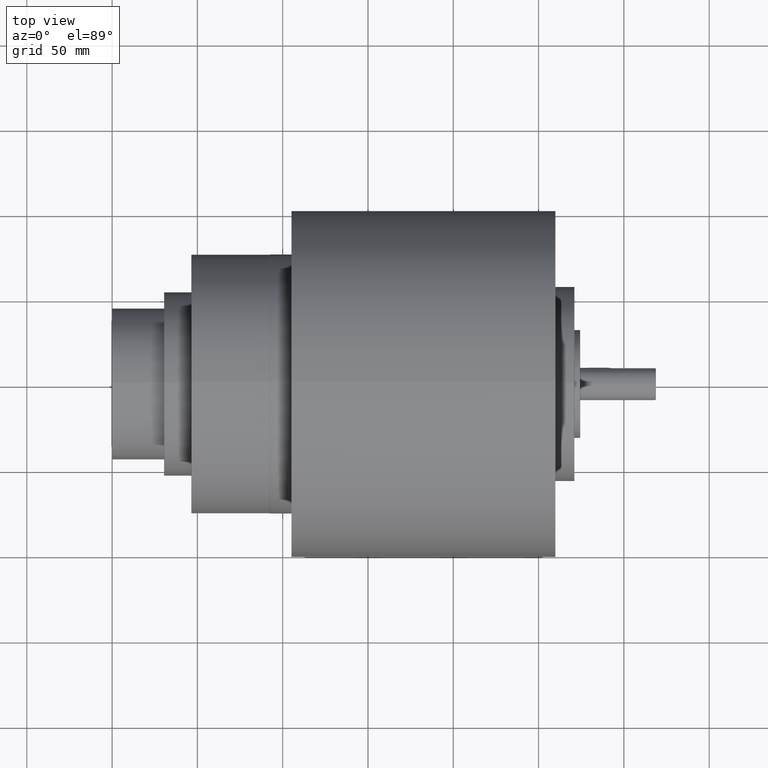
[diagram: clean part render]
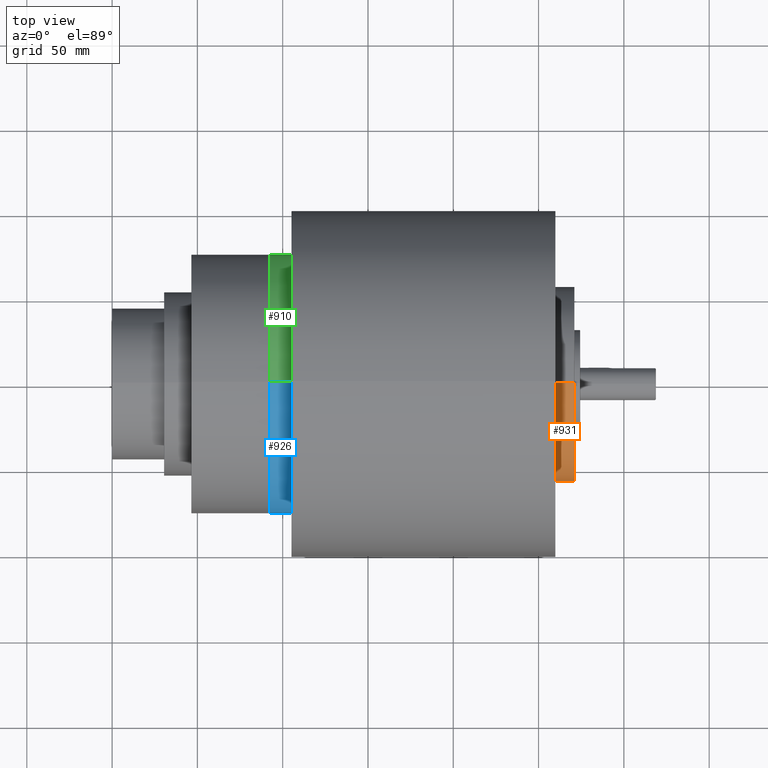
[diagram: same view with three faces highlighted in distinct colors, each labeled with its STEP entity id]
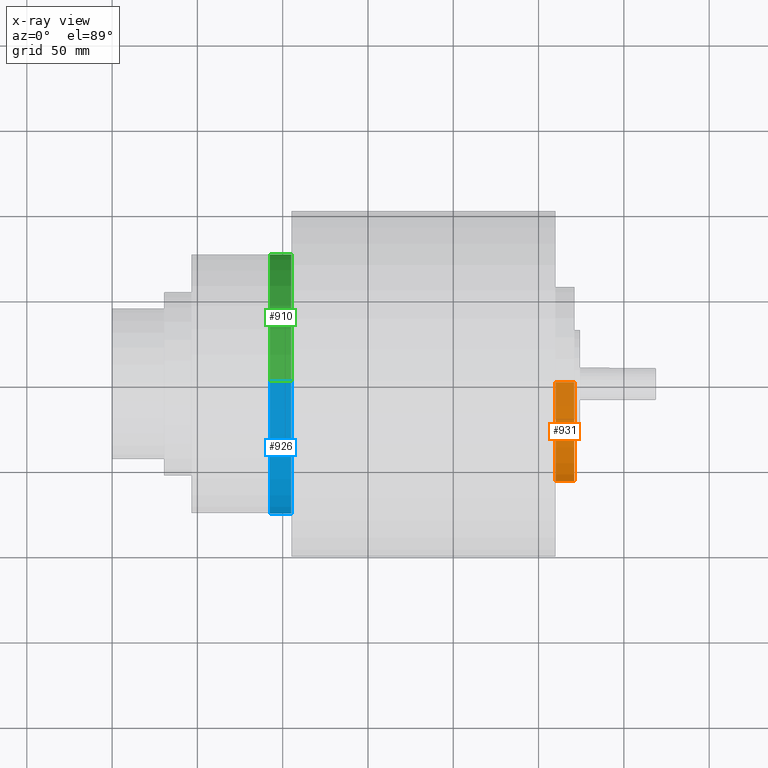
[diagram: x-ray of the same camera — body ghosted, the three highlighted faces saturated]
A machine part, top view with three faces highlighted in distinct colors.
The next image is the same camera in x-ray (body ghosted, the three faces saturated) — at least one of them is partly hidden behind the body in this view.
Their STEP definitions:

[orange] entity #931 — the highlighted cylindrical surface (partial cylindrical patch) has radius 57.15 mm, axis along (-1, -0, -0).
#2 = EDGE_CURVE ( 'NONE', #527, #523, #1322, .T. ) ;
#54 = EDGE_CURVE ( 'NONE', #528, #524, #1394, .T. ) ;
#114 = EDGE_CURVE ( 'NONE', #523, #524, #1418, .T. ) ;
#237 = EDGE_CURVE ( 'NONE', #528, #527, #1516, .T. ) ;
#378 = EDGE_LOOP ( 'NONE', ( #1157, #1159, #1161, #1163 ) ) ;
#472 = CARTESIAN_POINT ( 'NONE',  ( 17.03396103067892800, 0.0000000000000000000, 2.250000000000000400 ) ) ;
#523 = VERTEX_POINT ( 'NONE', #1957 ) ;
#524 = VERTEX_POINT ( 'NONE', #1958 ) ;
#527 = VERTEX_POINT ( 'NONE', #1961 ) ;
#528 = VERTEX_POINT ( 'NONE', #1962 ) ;
#595 = DIRECTION ( 'NONE',  ( -1.000000000000000000, -0.0000000000000000000, -0.0000000000000000000 ) ) ;
#749 = CARTESIAN_POINT ( 'NONE',  ( 17.03396103067892800, 2.755455298081544800E-016, -2.250000000000000400 ) ) ;
#755 = DIRECTION ( 'NONE',  ( -1.000000000000000000, -0.0000000000000000000, -0.0000000000000000000 ) ) ;
#800 = CARTESIAN_POINT ( 'NONE',  ( 10.23500000000000100, 0.0000000000000000000, 0.0000000000000000000 ) ) ;
#802 = DIRECTION ( 'NONE',  ( 1.000000000000000000, 0.0000000000000000000, 0.0000000000000000000 ) ) ;
#803 = DIRECTION ( 'NONE',  ( 0.0000000000000000000, 0.0000000000000000000, -1.000000000000000000 ) ) ;
#931 = ADVANCED_FACE ( 'NONE', ( #2567 ), #2576, .T. ) ;
#1157 = ORIENTED_EDGE ( 'NONE', *, *, #54, .F. ) ;
#1159 = ORIENTED_EDGE ( 'NONE', *, *, #237, .T. ) ;
#1161 = ORIENTED_EDGE ( 'NONE', *, *, #2, .T. ) ;
#1163 = ORIENTED_EDGE ( 'NONE', *, *, #114, .T. ) ;
#1319 = VECTOR ( 'NONE', #595, 39.37007874015748100 ) ;
#1322 = LINE ( 'NONE', #472, #1319 ) ;
#1392 = VECTOR ( 'NONE', #755, 39.37007874015748100 ) ;
#1394 = LINE ( 'NONE', #749, #1392 ) ;
#1418 = CIRCLE ( 'NONE', #1595, 2.250000000000000400 ) ;
#1516 = CIRCLE ( 'NONE', #1628, 2.250000000000000400 ) ;
#1595 = AXIS2_PLACEMENT_3D ( 'NONE', #800, #802, #803 ) ;
#1628 = AXIS2_PLACEMENT_3D ( 'NONE', #1863, #1870, #1871 ) ;
#1749 = AXIS2_PLACEMENT_3D ( 'NONE', #2358, #2361, #2360 ) ;
#1863 = CARTESIAN_POINT ( 'NONE',  ( 10.66500000000000300, 0.0000000000000000000, 0.0000000000000000000 ) ) ;
#1870 = DIRECTION ( 'NONE',  ( -1.000000000000000000, -0.0000000000000000000, -0.0000000000000000000 ) ) ;
#1871 = DIRECTION ( 'NONE',  ( 0.0000000000000000000, 0.0000000000000000000, -1.000000000000000000 ) ) ;
#1957 = CARTESIAN_POINT ( 'NONE',  ( 10.23500000000000100, 0.0000000000000000000, 2.250000000000000400 ) ) ;
#1958 = CARTESIAN_POINT ( 'NONE',  ( 10.23500000000000100, 2.755455298081544800E-016, -2.250000000000000400 ) ) ;
#1961 = CARTESIAN_POINT ( 'NONE',  ( 10.66500000000000300, 0.0000000000000000000, 2.250000000000000400 ) ) ;
#1962 = CARTESIAN_POINT ( 'NONE',  ( 10.66500000000000300, 2.755455298081544800E-016, -2.250000000000000400 ) ) ;
#2358 = CARTESIAN_POINT ( 'NONE',  ( 17.03396103067892800, 0.0000000000000000000, 0.0000000000000000000 ) ) ;
#2360 = DIRECTION ( 'NONE',  ( 0.0000000000000000000, 0.0000000000000000000, 1.000000000000000000 ) ) ;
#2361 = DIRECTION ( 'NONE',  ( -1.000000000000000000, -0.0000000000000000000, -0.0000000000000000000 ) ) ;
#2567 = FACE_OUTER_BOUND ( 'NONE', #378, .T. ) ;
#2576 = CYLINDRICAL_SURFACE ( 'NONE', #1749, 2.250000000000000400 ) ;

[blue] entity #926 — the highlighted cylindrical surface (partial cylindrical patch) has radius 76.2 mm, axis along (-1, -0, -0).
#11 = EDGE_CURVE ( 'NONE', #494, #516, #1337, .T. ) ;
#13 = EDGE_CURVE ( 'NONE', #493, #515, #1335, .T. ) ;
#365 = EDGE_LOOP ( 'NONE', ( #1107, #1108, #1110, #1112 ) ) ;
#493 = VERTEX_POINT ( 'NONE', #1927 ) ;
#494 = VERTEX_POINT ( 'NONE', #1928 ) ;
#515 = VERTEX_POINT ( 'NONE', #1949 ) ;
#516 = VERTEX_POINT ( 'NONE', #1950 ) ;
#610 = CARTESIAN_POINT ( 'NONE',  ( 12.62528137423857200, 3.673940397442060400E-016, -3.000000000000000400 ) ) ;
#616 = DIRECTION ( 'NONE',  ( -1.000000000000000000, -0.0000000000000000000, -0.0000000000000000000 ) ) ;
#619 = CARTESIAN_POINT ( 'NONE',  ( 12.62528137423857200, 0.0000000000000000000, 3.000000000000000400 ) ) ;
#620 = DIRECTION ( 'NONE',  ( -1.000000000000000000, -0.0000000000000000000, -0.0000000000000000000 ) ) ;
#833 = EDGE_CURVE ( 'NONE', #494, #493, #1542, .T. ) ;
#867 = EDGE_CURVE ( 'NONE', #515, #516, #1578, .T. ) ;
#926 = ADVANCED_FACE ( 'NONE', ( #2557 ), #2561, .T. ) ;
#1107 = ORIENTED_EDGE ( 'NONE', *, *, #11, .F. ) ;
#1108 = ORIENTED_EDGE ( 'NONE', *, *, #833, .T. ) ;
#1110 = ORIENTED_EDGE ( 'NONE', *, *, #13, .T. ) ;
#1112 = ORIENTED_EDGE ( 'NONE', *, *, #867, .T. ) ;
#1329 = VECTOR ( 'NONE', #616, 39.37007874015748100 ) ;
#1335 = LINE ( 'NONE', #619, #1336 ) ;
#1336 = VECTOR ( 'NONE', #620, 39.37007874015748100 ) ;
#1337 = LINE ( 'NONE', #610, #1329 ) ;
#1542 = CIRCLE ( 'NONE', #1644, 3.000000000000000400 ) ;
#1578 = CIRCLE ( 'NONE', #1682, 3.000000000000000400 ) ;
#1644 = AXIS2_PLACEMENT_3D ( 'NONE', #2065, #2066, #2067 ) ;
#1682 = AXIS2_PLACEMENT_3D ( 'NONE', #2167, #2169, #2170 ) ;
#1744 = AXIS2_PLACEMENT_3D ( 'NONE', #2347, #2346, #2344 ) ;
#1927 = CARTESIAN_POINT ( 'NONE',  ( 4.134999999999999800, 0.0000000000000000000, 3.000000000000000400 ) ) ;
#1928 = CARTESIAN_POINT ( 'NONE',  ( 4.134999999999999800, 3.673940397442060400E-016, -3.000000000000000400 ) ) ;
#1949 = CARTESIAN_POINT ( 'NONE',  ( 3.640000000000000100, 0.0000000000000000000, 3.000000000000000400 ) ) ;
#1950 = CARTESIAN_POINT ( 'NONE',  ( 3.640000000000000100, 3.673940397442060400E-016, -3.000000000000000400 ) ) ;
#2065 = CARTESIAN_POINT ( 'NONE',  ( 4.134999999999999800, 0.0000000000000000000, 0.0000000000000000000 ) ) ;
#2066 = DIRECTION ( 'NONE',  ( -1.000000000000000000, -0.0000000000000000000, -0.0000000000000000000 ) ) ;
#2067 = DIRECTION ( 'NONE',  ( 0.0000000000000000000, 0.0000000000000000000, -1.000000000000000000 ) ) ;
#2167 = CARTESIAN_POINT ( 'NONE',  ( 3.640000000000000100, 0.0000000000000000000, 0.0000000000000000000 ) ) ;
#2169 = DIRECTION ( 'NONE',  ( 1.000000000000000000, 0.0000000000000000000, 0.0000000000000000000 ) ) ;
#2170 = DIRECTION ( 'NONE',  ( 0.0000000000000000000, 0.0000000000000000000, -1.000000000000000000 ) ) ;
#2344 = DIRECTION ( 'NONE',  ( 0.0000000000000000000, 0.0000000000000000000, 1.000000000000000000 ) ) ;
#2346 = DIRECTION ( 'NONE',  ( -1.000000000000000000, -0.0000000000000000000, -0.0000000000000000000 ) ) ;
#2347 = CARTESIAN_POINT ( 'NONE',  ( 12.62528137423857200, 0.0000000000000000000, 0.0000000000000000000 ) ) ;
#2557 = FACE_OUTER_BOUND ( 'NONE', #365, .T. ) ;
#2561 = CYLINDRICAL_SURFACE ( 'NONE', #1744, 3.000000000000000400 ) ;

[green] entity #910 — the highlighted cylindrical surface (partial cylindrical patch) has radius 76.2 mm, axis along (-1, -0, -0).
#10 = EDGE_CURVE ( 'NONE', #516, #515, #1338, .T. ) ;
#11 = EDGE_CURVE ( 'NONE', #494, #516, #1337, .T. ) ;
#12 = EDGE_CURVE ( 'NONE', #493, #494, #1340, .T. ) ;
#13 = EDGE_CURVE ( 'NONE', #493, #515, #1335, .T. ) ;
#58 = AXIS2_PLACEMENT_3D ( 'NONE', #612, #613, #614 ) ;
#340 = EDGE_LOOP ( 'NONE', ( #1004, #1005, #1006, #1007 ) ) ;
#493 = VERTEX_POINT ( 'NONE', #1927 ) ;
#494 = VERTEX_POINT ( 'NONE', #1928 ) ;
#515 = VERTEX_POINT ( 'NONE', #1949 ) ;
#516 = VERTEX_POINT ( 'NONE', #1950 ) ;
#610 = CARTESIAN_POINT ( 'NONE',  ( 12.62528137423857200, 3.673940397442060400E-016, -3.000000000000000400 ) ) ;
#612 = CARTESIAN_POINT ( 'NONE',  ( 3.640000000000000100, 0.0000000000000000000, 0.0000000000000000000 ) ) ;
#613 = DIRECTION ( 'NONE',  ( 1.000000000000000000, 0.0000000000000000000, 0.0000000000000000000 ) ) ;
#614 = DIRECTION ( 'NONE',  ( 0.0000000000000000000, 0.0000000000000000000, -1.000000000000000000 ) ) ;
#615 = CARTESIAN_POINT ( 'NONE',  ( 4.134999999999999800, 0.0000000000000000000, 0.0000000000000000000 ) ) ;
#616 = DIRECTION ( 'NONE',  ( -1.000000000000000000, -0.0000000000000000000, -0.0000000000000000000 ) ) ;
#617 = DIRECTION ( 'NONE',  ( -1.000000000000000000, -0.0000000000000000000, -0.0000000000000000000 ) ) ;
#618 = DIRECTION ( 'NONE',  ( 0.0000000000000000000, 0.0000000000000000000, -1.000000000000000000 ) ) ;
#619 = CARTESIAN_POINT ( 'NONE',  ( 12.62528137423857200, 0.0000000000000000000, 3.000000000000000400 ) ) ;
#620 = DIRECTION ( 'NONE',  ( -1.000000000000000000, -0.0000000000000000000, -0.0000000000000000000 ) ) ;
#910 = ADVANCED_FACE ( 'NONE', ( #2518 ), #2527, .T. ) ;
#1004 = ORIENTED_EDGE ( 'NONE', *, *, #12, .T. ) ;
#1005 = ORIENTED_EDGE ( 'NONE', *, *, #11, .T. ) ;
#1006 = ORIENTED_EDGE ( 'NONE', *, *, #10, .T. ) ;
#1007 = ORIENTED_EDGE ( 'NONE', *, *, #13, .F. ) ;
#1329 = VECTOR ( 'NONE', #616, 39.37007874015748100 ) ;
#1335 = LINE ( 'NONE', #619, #1336 ) ;
#1336 = VECTOR ( 'NONE', #620, 39.37007874015748100 ) ;
#1337 = LINE ( 'NONE', #610, #1329 ) ;
#1338 = CIRCLE ( 'NONE', #58, 3.000000000000000400 ) ;
#1340 = CIRCLE ( 'NONE', #2688, 3.000000000000000400 ) ;
#1728 = AXIS2_PLACEMENT_3D ( 'NONE', #2292, #2291, #2287 ) ;
#1927 = CARTESIAN_POINT ( 'NONE',  ( 4.134999999999999800, 0.0000000000000000000, 3.000000000000000400 ) ) ;
#1928 = CARTESIAN_POINT ( 'NONE',  ( 4.134999999999999800, 3.673940397442060400E-016, -3.000000000000000400 ) ) ;
#1949 = CARTESIAN_POINT ( 'NONE',  ( 3.640000000000000100, 0.0000000000000000000, 3.000000000000000400 ) ) ;
#1950 = CARTESIAN_POINT ( 'NONE',  ( 3.640000000000000100, 3.673940397442060400E-016, -3.000000000000000400 ) ) ;
#2287 = DIRECTION ( 'NONE',  ( 0.0000000000000000000, 0.0000000000000000000, 1.000000000000000000 ) ) ;
#2291 = DIRECTION ( 'NONE',  ( -1.000000000000000000, -0.0000000000000000000, -0.0000000000000000000 ) ) ;
#2292 = CARTESIAN_POINT ( 'NONE',  ( 12.62528137423857200, 0.0000000000000000000, 0.0000000000000000000 ) ) ;
#2518 = FACE_OUTER_BOUND ( 'NONE', #340, .T. ) ;
#2527 = CYLINDRICAL_SURFACE ( 'NONE', #1728, 3.000000000000000400 ) ;
#2688 = AXIS2_PLACEMENT_3D ( 'NONE', #615, #617, #618 ) ;